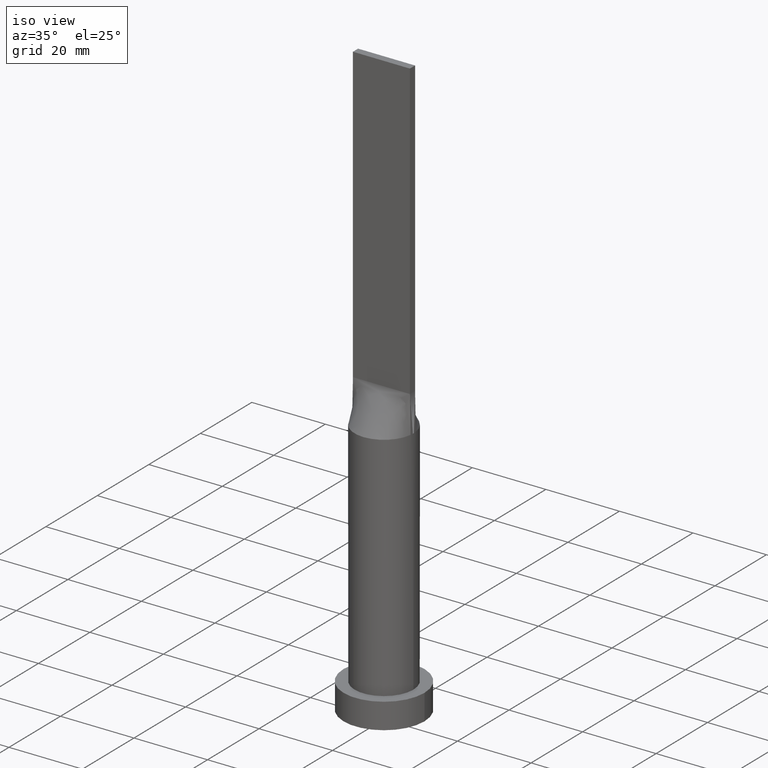
[diagram: clean part render]
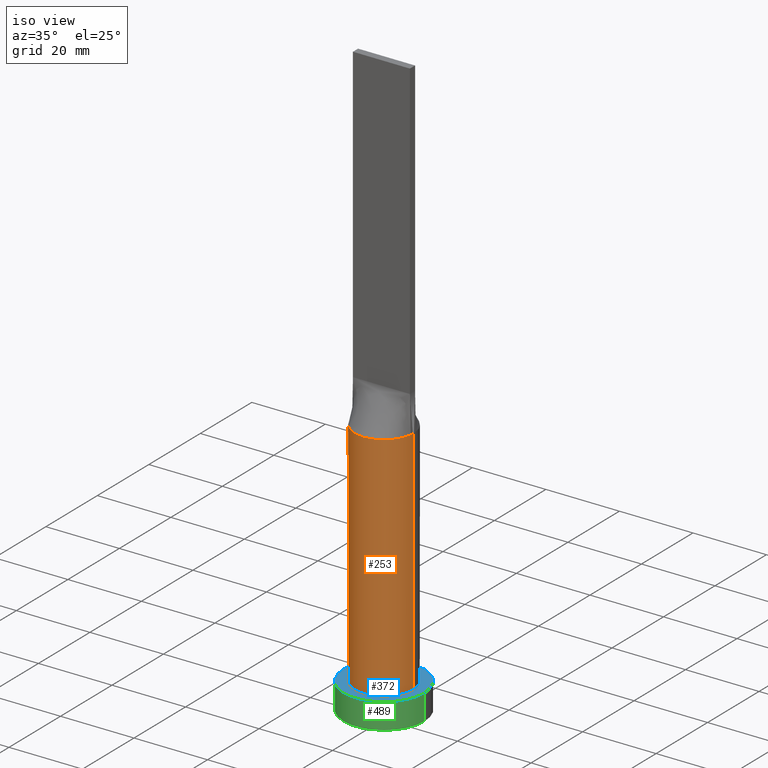
[diagram: same view with three faces highlighted in distinct colors, each labeled with its STEP entity id]
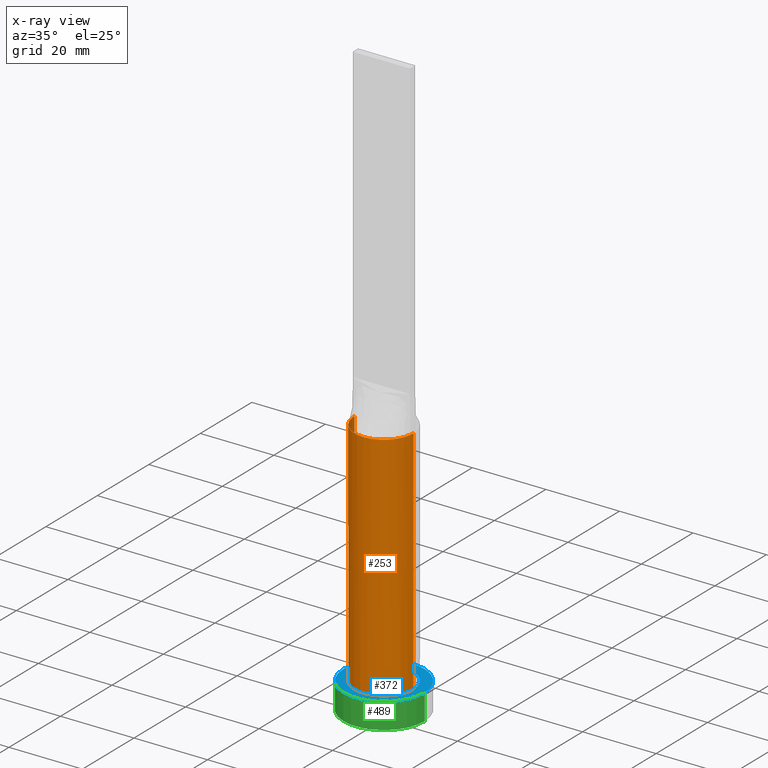
[diagram: x-ray of the same camera — body ghosted, the three highlighted faces saturated]
A machine part, iso view with three faces highlighted in distinct colors.
The next image is the same camera in x-ray (body ghosted, the three faces saturated) — at least one of them is partly hidden behind the body in this view.
Their STEP definitions:

[orange] entity #253 — the highlighted cylindrical surface (edge-blend (fillet) strip) has radius 8 mm, axis along (-0, -0, -1).
#2 = VERTEX_POINT ( 'NONE', #140 ) ;
#7 = VERTEX_POINT ( 'NONE', #290 ) ;
#19 = AXIS2_PLACEMENT_3D ( 'NONE', #444, #327, #467 ) ;
#20 = VERTEX_POINT ( 'NONE', #212 ) ;
#39 = VECTOR ( 'NONE', #87, 1000.000000000000000 ) ;
#40 = DIRECTION ( 'NONE',  ( -0.000000000000000000, -0.000000000000000000, -1.000000000000000000 ) ) ;
#43 = CARTESIAN_POINT ( 'NONE',  ( -8.000000000000000000, 0.000000000000000000, 70.00000000000000000 ) ) ;
#61 = ORIENTED_EDGE ( 'NONE', *, *, #229, .F. ) ;
#68 = ORIENTED_EDGE ( 'NONE', *, *, #520, .F. ) ;
#87 = DIRECTION ( 'NONE',  ( -0.000000000000000000, -0.000000000000000000, -1.000000000000000000 ) ) ;
#118 = ORIENTED_EDGE ( 'NONE', *, *, #441, .T. ) ;
#137 = CARTESIAN_POINT ( 'NONE',  ( -8.000000000000000000, 0.000000000000000000, 7.000000000000000000 ) ) ;
#140 = CARTESIAN_POINT ( 'NONE',  ( 8.000000000000000000, 9.797174393178825657E-16, 7.000000000000000000 ) ) ;
#153 = EDGE_CURVE ( 'NONE', #20, #250, #169, .T. ) ;
#155 = AXIS2_PLACEMENT_3D ( 'NONE', #387, #625, #442 ) ;
#157 = AXIS2_PLACEMENT_3D ( 'NONE', #480, #40, #526 ) ;
#169 = CIRCLE ( 'NONE', #155, 8.000000000000000000 ) ;
#176 = EDGE_CURVE ( 'NONE', #7, #610, #280, .T. ) ;
#212 = CARTESIAN_POINT ( 'NONE',  ( 7.934268799922667981, -1.023776637617846319, 70.00000000000000000 ) ) ;
#218 = VECTOR ( 'NONE', #528, 1000.000000000000000 ) ;
#229 = EDGE_CURVE ( 'NONE', #250, #2, #344, .T. ) ;
#250 = VERTEX_POINT ( 'NONE', #529 ) ;
#253 = ADVANCED_FACE ( 'NONE', ( #340 ), #285, .T. ) ;
#258 = ORIENTED_EDGE ( 'NONE', *, *, #176, .T. ) ;
#280 = LINE ( 'NONE', #43, #39 ) ;
#285 = CYLINDRICAL_SURFACE ( 'NONE', #157, 8.000000000000000000 ) ;
#288 = AXIS2_PLACEMENT_3D ( 'NONE', #577, #434, #579 ) ;
#290 = CARTESIAN_POINT ( 'NONE',  ( -7.999864793045825984, 2.648518981350782698E-14, 70.00000000000000000 ) ) ;
#299 = ORIENTED_EDGE ( 'NONE', *, *, #380, .F. ) ;
#327 = DIRECTION ( 'NONE',  ( 0.000000000000000000, 0.000000000000000000, 1.000000000000000000 ) ) ;
#340 = FACE_OUTER_BOUND ( 'NONE', #501, .T. ) ;
#344 = LINE ( 'NONE', #622, #218 ) ;
#380 = EDGE_CURVE ( 'NONE', #603, #20, #454, .T. ) ;
#387 = CARTESIAN_POINT ( 'NONE',  ( 0.000000000000000000, 0.000000000000000000, 70.00000000000000000 ) ) ;
#430 = CIRCLE ( 'NONE', #19, 8.000000000000000000 ) ;
#434 = DIRECTION ( 'NONE',  ( 0.000000000000000000, 0.000000000000000000, 1.000000000000000000 ) ) ;
#441 = EDGE_CURVE ( 'NONE', #610, #2, #430, .T. ) ;
#442 = DIRECTION ( 'NONE',  ( 1.000000000000000000, 9.769962616701377556E-15, 0.000000000000000000 ) ) ;
#444 = CARTESIAN_POINT ( 'NONE',  ( 0.000000000000000000, 0.000000000000000000, 7.000000000000000000 ) ) ;
#445 = AXIS2_PLACEMENT_3D ( 'NONE', #461, #509, #613 ) ;
#454 = CIRCLE ( 'NONE', #288, 8.000000000000000000 ) ;
#461 = CARTESIAN_POINT ( 'NONE',  ( 0.000000000000000000, 0.000000000000000000, 70.00000000000000000 ) ) ;
#467 = DIRECTION ( 'NONE',  ( 1.000000000000000000, 0.000000000000000000, 0.000000000000000000 ) ) ;
#480 = CARTESIAN_POINT ( 'NONE',  ( 0.000000000000000000, 0.000000000000000000, 70.00000000000000000 ) ) ;
#501 = EDGE_LOOP ( 'NONE', ( #61, #530, #299, #68, #258, #118 ) ) ;
#509 = DIRECTION ( 'NONE',  ( 0.000000000000000000, 0.000000000000000000, 1.000000000000000000 ) ) ;
#520 = EDGE_CURVE ( 'NONE', #7, #603, #606, .T. ) ;
#526 = DIRECTION ( 'NONE',  ( -1.000000000000000000, 0.000000000000000000, 0.000000000000000000 ) ) ;
#528 = DIRECTION ( 'NONE',  ( -0.000000000000000000, -0.000000000000000000, -1.000000000000000000 ) ) ;
#529 = CARTESIAN_POINT ( 'NONE',  ( 7.999864793045824207, 2.000157186781041891E-15, 70.00000000000000000 ) ) ;
#530 = ORIENTED_EDGE ( 'NONE', *, *, #153, .F. ) ;
#577 = CARTESIAN_POINT ( 'NONE',  ( 0.000000000000000000, 0.000000000000000000, 70.00000000000000000 ) ) ;
#579 = DIRECTION ( 'NONE',  ( 1.000000000000000000, 0.000000000000000000, 0.000000000000000000 ) ) ;
#603 = VERTEX_POINT ( 'NONE', #619 ) ;
#606 = CIRCLE ( 'NONE', #445, 8.000000000000000000 ) ;
#610 = VERTEX_POINT ( 'NONE', #137 ) ;
#613 = DIRECTION ( 'NONE',  ( 1.000000000000000000, 0.000000000000000000, 0.000000000000000000 ) ) ;
#619 = CARTESIAN_POINT ( 'NONE',  ( -7.934257051336532029, -1.023775119746132001, 70.00000000000000000 ) ) ;
#622 = CARTESIAN_POINT ( 'NONE',  ( 8.000000000000000000, 9.797174393178825657E-16, 70.00000000000000000 ) ) ;
#625 = DIRECTION ( 'NONE',  ( 0.000000000000000000, 0.000000000000000000, 1.000000000000000000 ) ) ;

[blue] entity #372 — the highlighted planar face has unit normal (0, 0, 1).
#1 = EDGE_LOOP ( 'NONE', ( #609, #271 ) ) ;
#2 = VERTEX_POINT ( 'NONE', #140 ) ;
#19 = AXIS2_PLACEMENT_3D ( 'NONE', #444, #327, #467 ) ;
#21 = CARTESIAN_POINT ( 'NONE',  ( -11.00000000000000000, 0.000000000000000000, 7.000000000000000000 ) ) ;
#41 = CIRCLE ( 'NONE', #279, 8.000000000000000000 ) ;
#64 = CIRCLE ( 'NONE', #84, 11.00000000000000000 ) ;
#75 = EDGE_CURVE ( 'NONE', #536, #163, #268, .T. ) ;
#84 = AXIS2_PLACEMENT_3D ( 'NONE', #189, #533, #632 ) ;
#110 = ORIENTED_EDGE ( 'NONE', *, *, #441, .F. ) ;
#114 = CARTESIAN_POINT ( 'NONE',  ( 0.000000000000000000, 0.000000000000000000, 7.000000000000000000 ) ) ;
#135 = CARTESIAN_POINT ( 'NONE',  ( 0.000000000000000000, 0.000000000000000000, 7.000000000000000000 ) ) ;
#137 = CARTESIAN_POINT ( 'NONE',  ( -8.000000000000000000, 0.000000000000000000, 7.000000000000000000 ) ) ;
#138 = DIRECTION ( 'NONE',  ( 0.000000000000000000, 0.000000000000000000, 1.000000000000000000 ) ) ;
#140 = CARTESIAN_POINT ( 'NONE',  ( 8.000000000000000000, 9.797174393178825657E-16, 7.000000000000000000 ) ) ;
#163 = VERTEX_POINT ( 'NONE', #199 ) ;
#164 = EDGE_LOOP ( 'NONE', ( #110, #459 ) ) ;
#189 = CARTESIAN_POINT ( 'NONE',  ( 0.000000000000000000, 0.000000000000000000, 7.000000000000000000 ) ) ;
#193 = CARTESIAN_POINT ( 'NONE',  ( 0.000000000000000000, 0.000000000000000000, 7.000000000000000000 ) ) ;
#196 = FACE_OUTER_BOUND ( 'NONE', #1, .T. ) ;
#199 = CARTESIAN_POINT ( 'NONE',  ( 11.00000000000000000, 1.347111479062088405E-15, 7.000000000000000000 ) ) ;
#239 = DIRECTION ( 'NONE',  ( 1.000000000000000000, 0.000000000000000000, 0.000000000000000000 ) ) ;
#267 = DIRECTION ( 'NONE',  ( 0.000000000000000000, 0.000000000000000000, 1.000000000000000000 ) ) ;
#268 = CIRCLE ( 'NONE', #359, 11.00000000000000000 ) ;
#271 = ORIENTED_EDGE ( 'NONE', *, *, #307, .T. ) ;
#276 = DIRECTION ( 'NONE',  ( 1.000000000000000000, 0.000000000000000000, 0.000000000000000000 ) ) ;
#279 = AXIS2_PLACEMENT_3D ( 'NONE', #135, #138, #239 ) ;
#283 = EDGE_CURVE ( 'NONE', #2, #610, #41, .T. ) ;
#293 = DIRECTION ( 'NONE',  ( 1.000000000000000000, 0.000000000000000000, -0.000000000000000000 ) ) ;
#307 = EDGE_CURVE ( 'NONE', #163, #536, #64, .T. ) ;
#327 = DIRECTION ( 'NONE',  ( 0.000000000000000000, 0.000000000000000000, 1.000000000000000000 ) ) ;
#341 = AXIS2_PLACEMENT_3D ( 'NONE', #193, #395, #293 ) ;
#359 = AXIS2_PLACEMENT_3D ( 'NONE', #114, #267, #276 ) ;
#372 = ADVANCED_FACE ( 'NONE', ( #571, #196 ), #391, .T. ) ;
#391 = PLANE ( 'NONE',  #341 ) ;
#395 = DIRECTION ( 'NONE',  ( 0.000000000000000000, 0.000000000000000000, 1.000000000000000000 ) ) ;
#430 = CIRCLE ( 'NONE', #19, 8.000000000000000000 ) ;
#441 = EDGE_CURVE ( 'NONE', #610, #2, #430, .T. ) ;
#444 = CARTESIAN_POINT ( 'NONE',  ( 0.000000000000000000, 0.000000000000000000, 7.000000000000000000 ) ) ;
#459 = ORIENTED_EDGE ( 'NONE', *, *, #283, .F. ) ;
#467 = DIRECTION ( 'NONE',  ( 1.000000000000000000, 0.000000000000000000, 0.000000000000000000 ) ) ;
#533 = DIRECTION ( 'NONE',  ( 0.000000000000000000, 0.000000000000000000, 1.000000000000000000 ) ) ;
#536 = VERTEX_POINT ( 'NONE', #21 ) ;
#571 = FACE_BOUND ( 'NONE', #164, .T. ) ;
#609 = ORIENTED_EDGE ( 'NONE', *, *, #75, .T. ) ;
#610 = VERTEX_POINT ( 'NONE', #137 ) ;
#632 = DIRECTION ( 'NONE',  ( 1.000000000000000000, 0.000000000000000000, 0.000000000000000000 ) ) ;

[green] entity #489 — the highlighted cylindrical surface (partial cylindrical patch) has radius 11 mm, axis along (-0, -0, -1).
#21 = CARTESIAN_POINT ( 'NONE',  ( -11.00000000000000000, 0.000000000000000000, 7.000000000000000000 ) ) ;
#38 = DIRECTION ( 'NONE',  ( -0.000000000000000000, -0.000000000000000000, -1.000000000000000000 ) ) ;
#48 = DIRECTION ( 'NONE',  ( 1.000000000000000000, 0.000000000000000000, 0.000000000000000000 ) ) ;
#75 = EDGE_CURVE ( 'NONE', #536, #163, #268, .T. ) ;
#111 = ORIENTED_EDGE ( 'NONE', *, *, #631, .F. ) ;
#114 = CARTESIAN_POINT ( 'NONE',  ( 0.000000000000000000, 0.000000000000000000, 7.000000000000000000 ) ) ;
#123 = CARTESIAN_POINT ( 'NONE',  ( -11.00000000000000000, 0.000000000000000000, 0.000000000000000000 ) ) ;
#124 = CIRCLE ( 'NONE', #316, 11.00000000000000000 ) ;
#127 = DIRECTION ( 'NONE',  ( -0.000000000000000000, -0.000000000000000000, -1.000000000000000000 ) ) ;
#147 = ORIENTED_EDGE ( 'NONE', *, *, #75, .F. ) ;
#163 = VERTEX_POINT ( 'NONE', #199 ) ;
#172 = CARTESIAN_POINT ( 'NONE',  ( -11.00000000000000000, 0.000000000000000000, 7.000000000000000000 ) ) ;
#199 = CARTESIAN_POINT ( 'NONE',  ( 11.00000000000000000, 1.347111479062088405E-15, 7.000000000000000000 ) ) ;
#225 = EDGE_LOOP ( 'NONE', ( #111, #147, #315, #263 ) ) ;
#263 = ORIENTED_EDGE ( 'NONE', *, *, #438, .T. ) ;
#267 = DIRECTION ( 'NONE',  ( 0.000000000000000000, 0.000000000000000000, 1.000000000000000000 ) ) ;
#268 = CIRCLE ( 'NONE', #359, 11.00000000000000000 ) ;
#276 = DIRECTION ( 'NONE',  ( 1.000000000000000000, 0.000000000000000000, 0.000000000000000000 ) ) ;
#315 = ORIENTED_EDGE ( 'NONE', *, *, #574, .T. ) ;
#316 = AXIS2_PLACEMENT_3D ( 'NONE', #360, #490, #48 ) ;
#319 = CYLINDRICAL_SURFACE ( 'NONE', #396, 11.00000000000000000 ) ;
#322 = FACE_OUTER_BOUND ( 'NONE', #225, .T. ) ;
#359 = AXIS2_PLACEMENT_3D ( 'NONE', #114, #267, #276 ) ;
#360 = CARTESIAN_POINT ( 'NONE',  ( 0.000000000000000000, 0.000000000000000000, 0.000000000000000000 ) ) ;
#375 = LINE ( 'NONE', #172, #572 ) ;
#396 = AXIS2_PLACEMENT_3D ( 'NONE', #469, #464, #559 ) ;
#438 = EDGE_CURVE ( 'NONE', #557, #552, #124, .T. ) ;
#464 = DIRECTION ( 'NONE',  ( -0.000000000000000000, -0.000000000000000000, -1.000000000000000000 ) ) ;
#466 = VECTOR ( 'NONE', #38, 1000.000000000000000 ) ;
#469 = CARTESIAN_POINT ( 'NONE',  ( 0.000000000000000000, 0.000000000000000000, 7.000000000000000000 ) ) ;
#489 = ADVANCED_FACE ( 'NONE', ( #322 ), #319, .T. ) ;
#490 = DIRECTION ( 'NONE',  ( 0.000000000000000000, 0.000000000000000000, 1.000000000000000000 ) ) ;
#536 = VERTEX_POINT ( 'NONE', #21 ) ;
#552 = VERTEX_POINT ( 'NONE', #564 ) ;
#557 = VERTEX_POINT ( 'NONE', #123 ) ;
#559 = DIRECTION ( 'NONE',  ( -1.000000000000000000, 0.000000000000000000, 0.000000000000000000 ) ) ;
#564 = CARTESIAN_POINT ( 'NONE',  ( 11.00000000000000000, 1.347111479062088405E-15, 0.000000000000000000 ) ) ;
#572 = VECTOR ( 'NONE', #127, 1000.000000000000000 ) ;
#574 = EDGE_CURVE ( 'NONE', #536, #557, #375, .T. ) ;
#578 = CARTESIAN_POINT ( 'NONE',  ( 11.00000000000000000, 1.347111479062088405E-15, 7.000000000000000000 ) ) ;
#631 = EDGE_CURVE ( 'NONE', #163, #552, #633, .T. ) ;
#633 = LINE ( 'NONE', #578, #466 ) ;